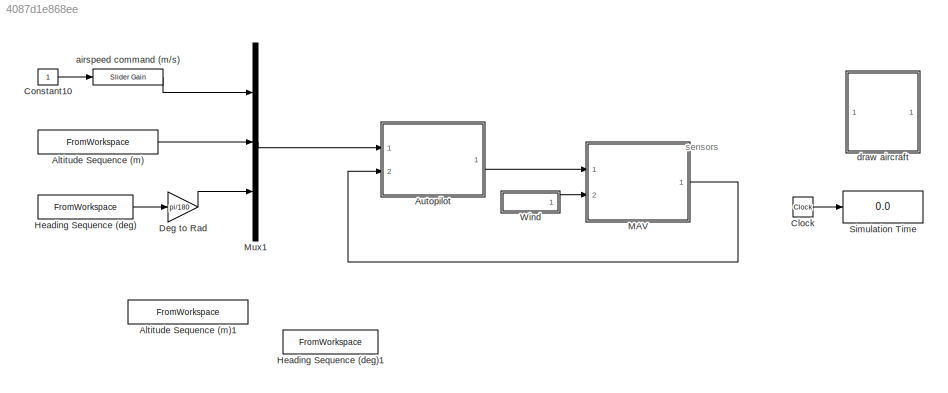
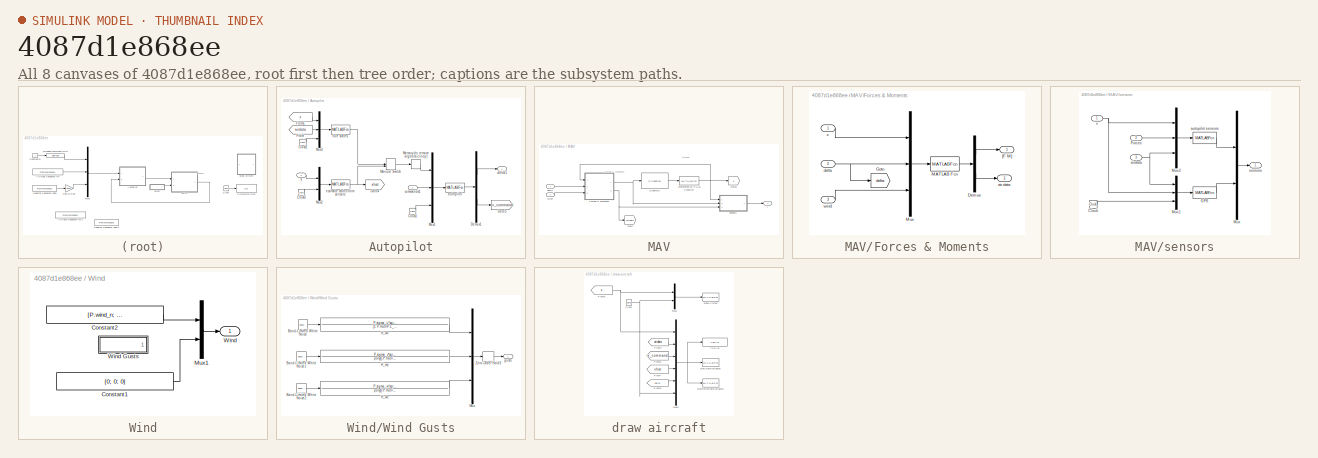
[diagram: thumbnail index - all 8 canvases of the model, root first then tree order]
MODEL slx_4087d1e868ee
KIND model
CONFIG AbsTol = auto
CONFIG EnableMultiTasking = on
CONFIG FixedStep = auto
CONFIG InitFcn = param_chap8
CONFIG MaxStep = auto
CONFIG MinStep = auto
CONFIG RelTol = 1e-3
CONFIG SampleTimeConstraint = Unconstrained
CONFIG Solver = ode15s
CONFIG SolverName = ode15s
CONFIG StartTime = 0.0
CONFIG StopTime = 80
BLOCK [FromWorkspace] Altitude Sequence (m)
  SampleTime = 0
  VariableName = [0, 100; 9.99, 100; 10, 105; 19.99, 105; 20, 95; 29.99, 95; 30, 100; 40, 100]
  ZeroCross = on
BLOCK [FromWorkspace] Altitude Sequence (m)1
  SampleTime = 0
  VariableName = [0, 100; 9.99, 100; 10, 105; 19.99, 105; 20, 95; 29.99, 95; 30, 100; 40, 100]
  ZeroCross = on
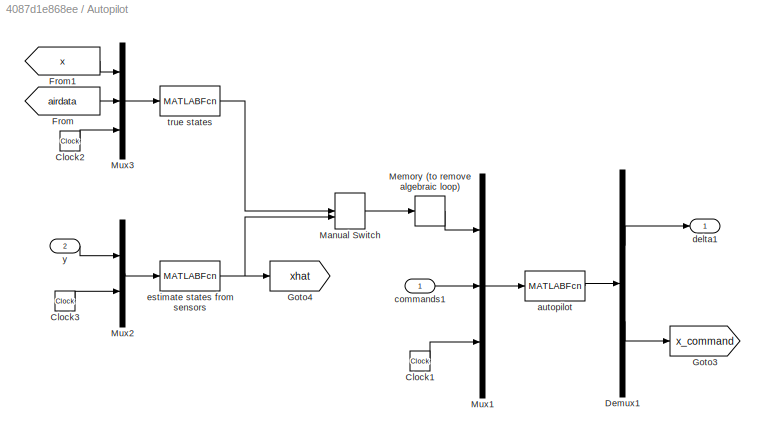
BLOCK [SubSystem] Autopilot
  Ports = [2, 1]
  RequestExecContextInheritance = off
  Variant = off
BLOCK [Clock] Autopilot/Clock1
BLOCK [Clock] Autopilot/Clock2
BLOCK [Clock] Autopilot/Clock3
BLOCK [Demux] Autopilot/Demux1
  DisplayOption = bar
  Outputs = [4;12]
  Ports = [1, 2]
BLOCK [From] Autopilot/From
  GotoTag = airdata
  TagVisibility = global
BLOCK [From] Autopilot/From1
  GotoTag = x
  TagVisibility = global
BLOCK [Goto] Autopilot/Goto3
  GotoTag = x_command
  TagVisibility = global
BLOCK [Goto] Autopilot/Goto4
  GotoTag = xhat
  TagVisibility = global
BLOCK [ManualSwitch] Autopilot/Manual Switch
  CurrentSetting = 0
BLOCK [Memory] Autopilot/Memory (to remove algebraic loop)
BLOCK [Mux] Autopilot/Mux1
  DisplayOption = bar
  Inputs = 3
  Ports = [3, 1]
BLOCK [Mux] Autopilot/Mux2
  DisplayOption = bar
  Inputs = 2
  Ports = [2, 1]
BLOCK [Mux] Autopilot/Mux3
  DisplayOption = bar
  Inputs = 3
  Ports = [3, 1]
BLOCK [MATLABFcn] Autopilot/autopilot
  MATLABFcn = autopilot(u,P)
  OutputDimensions = 4+12
  Ports = [1, 1]
  SampleTime = P.Ts
BLOCK [Inport] Autopilot/commands1
  IconDisplay = Port number
BLOCK [Outport] Autopilot/delta1
  IconDisplay = Port number
BLOCK [MATLABFcn] Autopilot/estimate states from sensors
  MATLABFcn = estimate_states(u,P)
  OutputDimensions = 19
  Ports = [1, 1]
  SampleTime = P.Ts
BLOCK [MATLABFcn] Autopilot/true states
  MATLABFcn = true_states(u,P)
  OutputDimensions = 19
  Ports = [1, 1]
  SampleTime = P.Ts
BLOCK [Inport] Autopilot/y
  IconDisplay = Port number
  Port = 2
BLOCK [Clock] Clock
BLOCK [Constant] Constant10
BLOCK [Gain] Deg to Rad
  Gain = pi/180
  OutDataTypeStr = Inherit: Inherit via internal rule
  ParamDataTypeStr = Inherit: Inherit via internal rule
  SaturateOnIntegerOverflow = off
BLOCK [FromWorkspace] Heading Sequence (deg)
  SampleTime = 0
  VariableName = [0, 0; 5.99, 0; 6, 30; 14.99, 30; 15, -30; 24.99, -30; 25, 0; 35, 0; 44.99, 0; 45, 90; 80, 90]
  ZeroCross = on
BLOCK [FromWorkspace] Heading Sequence (deg)1
  SampleTime = 0
  VariableName = [0, 0; 5.99, 0; 6, 30; 14.99, 30; 15, -30; 24.99, -30; 25, 0; 35, 0]
  ZeroCross = on
BLOCK [SubSystem] MAV
  Ports = [2, 1]
  RequestExecContextInheritance = off
  Variant = off
BLOCK [S-Function] MAV/Dynamics
  EnableBusSupport = off
  FunctionName = mav_dynamics
  Parameters = P
  Ports = [1, 1]
  SFcnIsStateOwnerBlock = off
  SFunctionDeploymentMode = off
BLOCK [SubSystem] MAV/Forces & Moments
  Ports = [3, 2]
  RequestExecContextInheritance = off
  Variant = off
BLOCK [Demux] MAV/Forces & Moments/Demux
  DisplayOption = bar
  Outputs = [6;6]
  Ports = [1, 2]
BLOCK [Goto] MAV/Forces & Moments/Goto
  GotoTag = delta
  TagVisibility = global
BLOCK [MATLABFcn] MAV/Forces & Moments/MATLAB Fcn
  MATLABFcn = forces_moments(u(1:12),u(13:16),u(17:22),P)
  OutputDimensions = 12
  Ports = [1, 1]
BLOCK [Mux] MAV/Forces & Moments/Mux
  DisplayOption = bar
  Inputs = 3
  Ports = [3, 1]
BLOCK [Outport] MAV/Forces & Moments/[F M]
  IconDisplay = Port number
BLOCK [Outport] MAV/Forces & Moments/air data
  IconDisplay = Port number
  Port = 2
BLOCK [Inport] MAV/Forces & Moments/delta
  IconDisplay = Port number
  Port = 2
BLOCK [Inport] MAV/Forces & Moments/wind
  IconDisplay = Port number
  Port = 3
BLOCK [Inport] MAV/Forces & Moments/x
  IconDisplay = Port number
BLOCK [Goto] MAV/Goto
  GotoTag = airdata
  TagVisibility = global
BLOCK [Goto] MAV/Goto1
  GotoTag = x
  TagVisibility = global
BLOCK [MATLABFcn] MAV/Interpreted MATLAB Function
  MATLABFcn = wrap_angles
  Ports = [1, 1]
BLOCK [Inport] MAV/delta
  IconDisplay = Port number
BLOCK [SubSystem] MAV/sensors
  Ports = [3, 1]
  RequestExecContextInheritance = off
  Variant = off
BLOCK [Clock] MAV/sensors/Clock
BLOCK [Inport] MAV/sensors/Forces
  IconDisplay = Port number
  Port = 2
BLOCK [MATLABFcn] MAV/sensors/GPS
  MATLABFcn = gps(u,P)
  OutputDimensions = 5
  Ports = [1, 1]
  SampleTime = P.Ts_gps
BLOCK [Mux] MAV/sensors/Mux
  DisplayOption = bar
  Inputs = 2
  Ports = [2, 1]
BLOCK [Mux] MAV/sensors/Mux1
  DisplayOption = bar
  Inputs = 3
  Ports = [3, 1]
BLOCK [Mux] MAV/sensors/Mux2
  DisplayOption = bar
  Inputs = 3
  Ports = [3, 1]
BLOCK [Inport] MAV/sensors/airdata
  IconDisplay = Port number
  Port = 3
BLOCK [MATLABFcn] MAV/sensors/autopilot sensors
  MATLABFcn = sensors(u,P)
  OutputDimensions = 8
  Ports = [1, 1]
  SampleTime = P.Ts_sensors
BLOCK [Outport] MAV/sensors/sensors
  IconDisplay = Port number
BLOCK [Inport] MAV/sensors/x
  IconDisplay = Port number
BLOCK [Inport] MAV/wind
  IconDisplay = Port number
  Port = 2
BLOCK [Outport] MAV/y
  IconDisplay = Port number
BLOCK [Mux] Mux1
  DisplayOption = bar
  Inputs = 3
  Ports = [3, 1]
BLOCK [Display] Simulation Time
  Decimation = 1
  Ports = [1]
BLOCK [SubSystem] Wind
  Ports = [0, 1]
  RequestExecContextInheritance = off
  Variant = off
BLOCK [Constant] Wind/Constant1
  Value = [0; 0; 0]
BLOCK [Constant] Wind/Constant2
  Value = [P.wind_n; P.wind_e; P.wind_d]
BLOCK [Mux] Wind/Mux1
  DisplayOption = bar
  Inputs = 2
  Ports = [2, 1]
BLOCK [Outport] Wind/Wind
  IconDisplay = Port number
BLOCK [SubSystem] Wind/Wind Gusts
  Ports = [0, 1]
  RequestExecContextInheritance = off
  Variant = off
BLOCK [Reference] Wind/Wind Gusts/Band-Limited White Noise  REF=simulink/Sources/Band-Limited
White Noise
  Ports = [0, 1]
  SourceBlock = simulink/Sources/Band-Limited\nWhite Noise
  SourceType = Band-Limited White Noise.
BLOCK [Reference] Wind/Wind Gusts/Band-Limited White Noise1  REF=simulink/Sources/Band-Limited
White Noise
  Ports = [0, 1]
  SourceBlock = simulink/Sources/Band-Limited\nWhite Noise
  SourceType = Band-Limited White Noise.
BLOCK [Reference] Wind/Wind Gusts/Band-Limited White Noise2  REF=simulink/Sources/Band-Limited
White Noise
  Ports = [0, 1]
  SourceBlock = simulink/Sources/Band-Limited\nWhite Noise
  SourceType = Band-Limited White Noise.
BLOCK [TransferFcn] Wind/Wind Gusts/H_wx
  Denominator = [1 P.Va0/P.L_u]
  Numerator = P.sigma_u*sqrt(2*P.Va0/P.L_u)
BLOCK [TransferFcn] Wind/Wind Gusts/H_wy
  Denominator = poly([-P.Va0/P.L_v, -P.Va0/P.L_v])
  Numerator = P.sigma_v*sqrt(3*P.Va0/P.L_v)*[0, 1, P.Va0/sqrt(3)/P.L_v]
BLOCK [TransferFcn] Wind/Wind Gusts/H_wz
  Denominator = poly([-P.Va0/P.L_w, -P.Va0/P.L_w])
  Numerator = P.sigma_w*sqrt(3*P.Va0/P.L_w)*[0, 1, P.Va0/sqrt(3)/P.L_w]
BLOCK [Mux] Wind/Wind Gusts/Mux
  DisplayOption = bar
  Inputs = 3
  Ports = [3, 1]
BLOCK [ZeroOrderHold] Wind/Wind Gusts/Zero-Order Hold3
  SampleTime = P.Ts
BLOCK [Outport] Wind/Wind Gusts/gusts
  IconDisplay = Port number
BLOCK [Reference] airspeed command (m//s)  REF=simulink/Math
Operations/Slider
Gain
  Ports = [1, 1]
  SourceBlock = simulink/Math\nOperations/Slider\nGain
  SourceType = Slider Gain
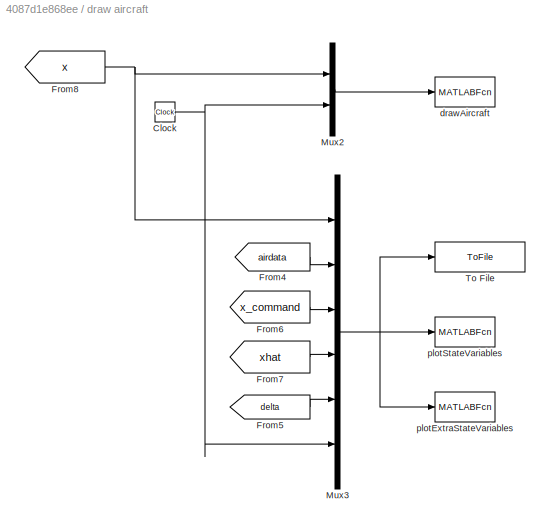
BLOCK [SubSystem] draw aircraft
  Ports = []
  RequestExecContextInheritance = off
  Variant = off
BLOCK [Clock] draw aircraft/Clock
BLOCK [From] draw aircraft/From4
  GotoTag = airdata
  TagVisibility = global
BLOCK [From] draw aircraft/From5
  CloseFcn = tagdialog Close
  GotoTag = delta
  TagVisibility = global
BLOCK [From] draw aircraft/From6
  CloseFcn = tagdialog Close
  GotoTag = x_command
  TagVisibility = global
BLOCK [From] draw aircraft/From7
  CloseFcn = tagdialog Close
  GotoTag = xhat
  TagVisibility = global
BLOCK [From] draw aircraft/From8
  CloseFcn = tagdialog Close
  GotoTag = x
  TagVisibility = global
BLOCK [Mux] draw aircraft/Mux2
  DisplayOption = bar
  Inputs = 2
  Ports = [2, 1]
BLOCK [Mux] draw aircraft/Mux3
  DisplayOption = bar
  Inputs = 6
  Ports = [6, 1]
BLOCK [ToFile] draw aircraft/To File
  Filename = state_data.mat
  Ports = [1]
BLOCK [MATLABFcn] draw aircraft/drawAircraft
  MATLABFcn = drawVehicle(u)
  OutputDimensions = 0
  Ports = [1]
  SampleTime = 0.1
BLOCK [MATLABFcn] draw aircraft/plotExtraStateVariables
  MATLABFcn = plotextramavstatevariables(u,P)
  OutputDimensions = 0
  Ports = [1]
  SampleTime = 0.1
BLOCK [MATLABFcn] draw aircraft/plotStateVariables
  MATLABFcn = plotmavstatevariables(u)
  OutputDimensions = 0
  Ports = [1]
  SampleTime = 0.1
ANNOTATION (root): sensors
ANNOTATION MAV: Forces & Moments
ANNOTATION MAV: States
LINE Altitude Sequence (m):1 -> Mux1:2
LINE Autopilot/Clock1:1 -> Autopilot/Mux1:3
LINE Autopilot/Clock2:1 -> Autopilot/Mux3:3
LINE Autopilot/Clock3:1 -> Autopilot/Mux2:2
LINE Autopilot/Demux1:1 -> Autopilot/delta1:1
LINE Autopilot/Demux1:2 -> Autopilot/Goto3:1
LINE Autopilot/From1:1 -> Autopilot/Mux3:1
LINE Autopilot/From:1 -> Autopilot/Mux3:2
LINE Autopilot/Manual Switch:1 -> Autopilot/Memory (to remove algebraic loop):1
LINE Autopilot/Memory (to remove algebraic loop):1 -> Autopilot/Mux1:1
LINE Autopilot/Mux1:1 -> Autopilot/autopilot:1
LINE Autopilot/Mux2:1 -> Autopilot/estimate states from sensors:1
LINE Autopilot/Mux3:1 -> Autopilot/true states:1
LINE Autopilot/autopilot:1 -> Autopilot/Demux1:1
LINE Autopilot/commands1:1 -> Autopilot/Mux1:2
NET Autopilot/estimate states from sensors:1 -> Autopilot/Goto4:1, Autopilot/Manual Switch:2
LINE Autopilot/true states:1 -> Autopilot/Manual Switch:1
LINE Autopilot/y:1 -> Autopilot/Mux2:1
LINE Autopilot:1 -> MAV:1
LINE Clock:1 -> Simulation Time:1
LINE Constant10:1 -> airspeed command (m//s):1
LINE Deg to Rad:1 -> Mux1:3
LINE Heading Sequence (deg):1 -> Deg to Rad:1
LINE MAV/Dynamics:1 -> MAV/Interpreted MATLAB Function:1
LINE MAV/Forces & Moments/Demux:1 -> MAV/Forces & Moments/[F M]:1
LINE MAV/Forces & Moments/Demux:2 -> MAV/Forces & Moments/air data:1
LINE MAV/Forces & Moments/MATLAB Fcn:1 -> MAV/Forces & Moments/Demux:1
LINE MAV/Forces & Moments/Mux:1 -> MAV/Forces & Moments/MATLAB Fcn:1
NET MAV/Forces & Moments/delta:1 -> MAV/Forces & Moments/Goto:1, MAV/Forces & Moments/Mux:2
LINE MAV/Forces & Moments/wind:1 -> MAV/Forces & Moments/Mux:3
LINE MAV/Forces & Moments/x:1 -> MAV/Forces & Moments/Mux:1
NET MAV/Forces & Moments:1 -> MAV/Dynamics:1, MAV/sensors:2
NET MAV/Forces & Moments:2 -> MAV/Goto:1, MAV/sensors:3
NET MAV/Interpreted MATLAB Function:1 -> MAV/Forces & Moments:1, MAV/Goto1:1, MAV/sensors:1
LINE MAV/delta:1 -> MAV/Forces & Moments:2
LINE MAV/sensors/Clock:1 -> MAV/sensors/Mux1:3
LINE MAV/sensors/Forces:1 -> MAV/sensors/Mux2:2
LINE MAV/sensors/GPS:1 -> MAV/sensors/Mux:2
LINE MAV/sensors/Mux1:1 -> MAV/sensors/GPS:1
LINE MAV/sensors/Mux2:1 -> MAV/sensors/autopilot sensors:1
LINE MAV/sensors/Mux:1 -> MAV/sensors/sensors:1
NET MAV/sensors/airdata:1 -> MAV/sensors/Mux1:1, MAV/sensors/Mux2:3
LINE MAV/sensors/autopilot sensors:1 -> MAV/sensors/Mux:1
NET MAV/sensors/x:1 -> MAV/sensors/Mux1:2, MAV/sensors/Mux2:1
LINE MAV/sensors:1 -> MAV/y:1
LINE MAV/wind:1 -> MAV/Forces & Moments:3
LINE MAV:1 -> Autopilot:2
LINE Mux1:1 -> Autopilot:1
LINE Wind/Constant1:1 -> Wind/Mux1:2
LINE Wind/Constant2:1 -> Wind/Mux1:1
LINE Wind/Mux1:1 -> Wind/Wind:1
LINE Wind/Wind Gusts/Band-Limited White Noise1:1 -> Wind/Wind Gusts/H_wy:1
LINE Wind/Wind Gusts/Band-Limited White Noise2:1 -> Wind/Wind Gusts/H_wz:1
LINE Wind/Wind Gusts/Band-Limited White Noise:1 -> Wind/Wind Gusts/H_wx:1
LINE Wind/Wind Gusts/H_wx:1 -> Wind/Wind Gusts/Mux:1
LINE Wind/Wind Gusts/H_wy:1 -> Wind/Wind Gusts/Mux:2
LINE Wind/Wind Gusts/H_wz:1 -> Wind/Wind Gusts/Mux:3
LINE Wind/Wind Gusts/Mux:1 -> Wind/Wind Gusts/Zero-Order Hold3:1
LINE Wind/Wind Gusts/Zero-Order Hold3:1 -> Wind/Wind Gusts/gusts:1
LINE Wind:1 -> MAV:2
LINE airspeed command (m//s):1 -> Mux1:1
NET draw aircraft/Clock:1 -> draw aircraft/Mux2:2, draw aircraft/Mux3:6
LINE draw aircraft/From4:1 -> draw aircraft/Mux3:2
LINE draw aircraft/From5:1 -> draw aircraft/Mux3:5
LINE draw aircraft/From6:1 -> draw aircraft/Mux3:3
LINE draw aircraft/From7:1 -> draw aircraft/Mux3:4
NET draw aircraft/From8:1 -> draw aircraft/Mux2:1, draw aircraft/Mux3:1
LINE draw aircraft/Mux2:1 -> draw aircraft/drawAircraft:1
NET draw aircraft/Mux3:1 -> draw aircraft/To File:1, draw aircraft/plotExtraStateVariables:1, draw aircraft/plotStateVariables:1
note: NET lines group one-source signal fan-out (src -> all destinations, sorted); 1:1 wires keep LINE
